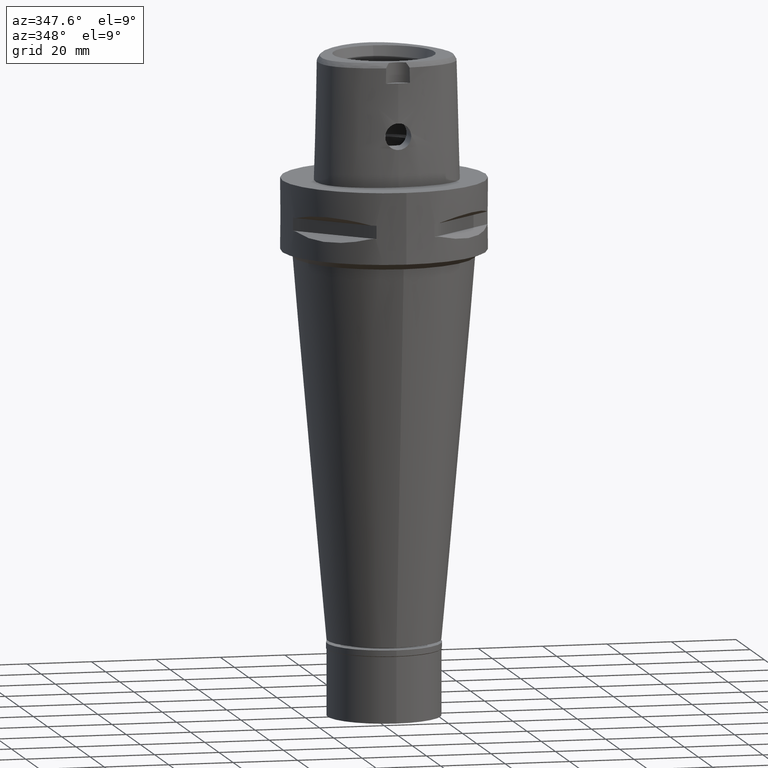
[diagram: clean part render]
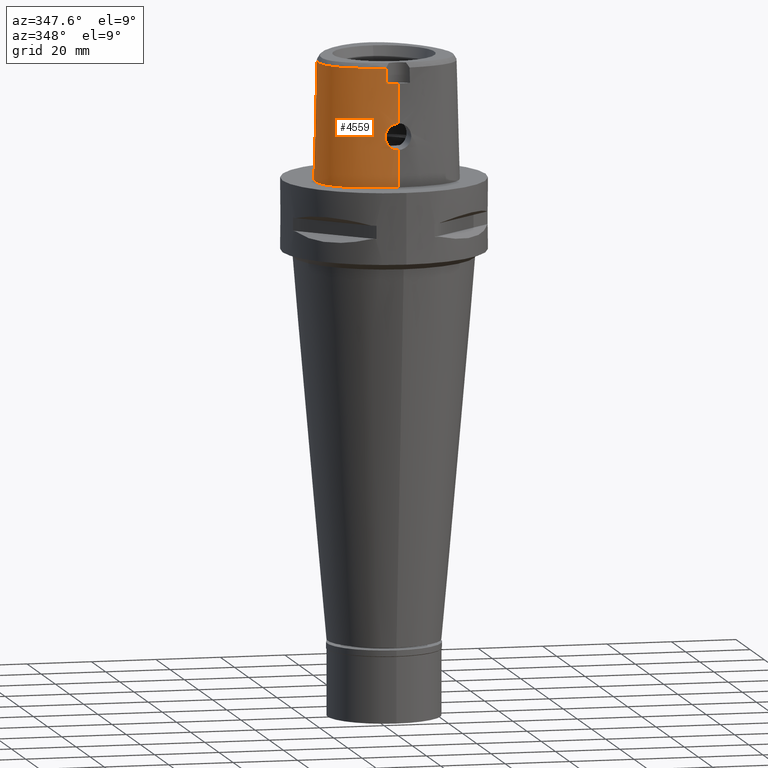
[diagram: same view with one face highlighted and labeled with its STEP entity id]
A machine part, auxiliary view. The second image highlights one B-rep face of the part: STEP entity #4559.
In plain terms, the highlighted face is a freeform B-spline surface patch.
Its self-contained STEP definition (entity closure, byte-faithful):
#1 = CARTESIAN_POINT ( 'NONE',  ( -19.54161185803999956, -11.28235486486999939, 37.25231658535999912 ) ) ;
#29 = CARTESIAN_POINT ( 'NONE',  ( -18.58171406405999804, -14.18198046378999955, -0.7304375801050999595 ) ) ;
#49 = CARTESIAN_POINT ( 'NONE',  ( -10.34823243682000005, 18.70095506127999840, 24.59139853019999933 ) ) ;
#55 = CARTESIAN_POINT ( 'NONE',  ( -1.435479731732086428, -20.16346186668282670, 19.28735383016543636 ) ) ;
#75 = CARTESIAN_POINT ( 'NONE',  ( -3.744959948694050578, -20.12552913461134096, 13.95798024830087947 ) ) ;
#78 = VERTEX_POINT ( 'NONE', #4947 ) ;
#95 = EDGE_LOOP ( 'NONE', ( #1143, #1514, #2871, #1360, #489, #749, #316, #3547 ) ) ;
#106 = CARTESIAN_POINT ( 'NONE',  ( -2.857701613778707905, -20.09902039673189122, 18.36986640665573489 ) ) ;
#127 = CARTESIAN_POINT ( 'NONE',  ( -3.724367697017637813, -20.04896662180712497, 17.09120659051006541 ) ) ;
#151 = CARTESIAN_POINT ( 'NONE',  ( -2.095920934924301093, -20.13817625620761120, 18.96566852664292924 ) ) ;
#186 = CARTESIAN_POINT ( 'NONE',  ( -2.840925263428953684, -20.10000581476812442, 18.38647058799852729 ) ) ;
#249 = CARTESIAN_POINT ( 'NONE',  ( -20.09619618741059099, -10.23243843867994940, 36.52186244848000740 ) ) ;
#272 = B_SPLINE_CURVE_WITH_KNOTS ( 'NONE', 3,
 ( #2077, #1771, #4505, #3262 ),
 .UNSPECIFIED., .F., .F.,
 ( 4, 4 ),
 ( 0.0000000000000000000, 1.000000000000000000 ),
 .UNSPECIFIED. ) ;
#277 = DIRECTION ( 'NONE',  ( 1.535575874124960494E-12, 0.02499051290971940689, -0.9996876883629751687 ) ) ;
#298 = CARTESIAN_POINT ( 'NONE',  ( -10.15538788052847785, 18.47129535094090613, 36.52186244848000740 ) ) ;
#301 = CARTESIAN_POINT ( 'NONE',  ( -2.503210914548999799, 22.99958943620999818, 11.93048047505000042 ) ) ;
#316 = ORIENTED_EDGE ( 'NONE', *, *, #2679, .T. ) ;
#327 = CARTESIAN_POINT ( 'NONE',  ( -10.14358078694999854, 18.45723421411999965, 37.25231658535999912 ) ) ;
#354 = CARTESIAN_POINT ( 'NONE',  ( -20.65879052904000091, -10.48283621510999986, 11.93048047505000042 ) ) ;
#374 = CARTESIAN_POINT ( 'NONE',  ( -21.55524829466141057, -8.996025400901972446, -1.437749666988608760E-06 ) ) ;
#376 = CARTESIAN_POINT ( 'NONE',  ( -20.96392254533999733, -8.820258327664999953, 24.59139853019999933 ) ) ;
#391 = VERTEX_POINT ( 'NONE', #1230 ) ;
#403 = CARTESIAN_POINT ( 'NONE',  ( -10.55288408668000066, 18.94467590843999716, 11.93048047505000042 ) ) ;
#431 = CARTESIAN_POINT ( 'NONE',  ( -14.52531265673999883, -16.95413752390999917, 11.93048047505000042 ) ) ;
#432 = EDGE_CURVE ( 'NONE', #4591, #2996, #664, .T. ) ;
#458 = CARTESIAN_POINT ( 'NONE',  ( -1.543155906917083708, -20.15993380737173979, 19.24449221917412700 ) ) ;
#486 = CARTESIAN_POINT ( 'NONE',  ( -2.218905924398697938, -20.13252692328815385, 18.88811097025638830 ) ) ;
#489 = ORIENTED_EDGE ( 'NONE', *, *, #3095, .F. ) ;
#517 = CARTESIAN_POINT ( 'NONE',  ( -3.258458186252930933, -20.07518877969969395, 17.91982202573088401 ) ) ;
#534 = CARTESIAN_POINT ( 'NONE',  ( -1.886862292100000005, -20.71358859662999663, -0.7304375801050999595 ) ) ;
#542 = CARTESIAN_POINT ( 'NONE',  ( -3.389265356481617975, -20.17902220973950378, 13.28291429010534586 ) ) ;
#550 = CARTESIAN_POINT ( 'NONE',  ( -3.637738201363999835, -19.56971413236999879, 36.52186244848000030 ) ) ;
#566 = CARTESIAN_POINT ( 'NONE',  ( -3.373031804187405669, -20.18121639258755451, 13.25829856262909701 ) ) ;
#591 = CARTESIAN_POINT ( 'NONE',  ( -5.544119042799000852E-12, -20.67499999999999716, 7.264559324463998182E-14 ) ) ;
#595 = CARTESIAN_POINT ( 'NONE',  ( -20.93173255500279595, -10.60431642089638693, -1.437749666988608760E-06 ) ) ;
#598 = CARTESIAN_POINT ( 'NONE',  ( -2.945056662729590435, -20.23335974770773404, 12.71951979027752166 ) ) ;
#602 = CARTESIAN_POINT ( 'NONE',  ( -3.736722311398999796, -19.67781602443999844, 31.80000000000000071 ) ) ;
#637 = CARTESIAN_POINT ( 'NONE',  ( -17.90324032096747331, -13.53935111955411763, 36.52186244848000740 ) ) ;
#640 = CARTESIAN_POINT ( 'NONE',  ( -1.592783463533563149, -20.34459380331111333, 11.77630631410508677 ) ) ;
#664 = B_SPLINE_CURVE_WITH_KNOTS ( 'NONE', 3,
 ( #4256, #3469, #2686, #3923, #3566, #796, #3542, #4362, #851, #2410, #1899, #5024, #374, #595, #1509, #1947, #3491, #1558, #3082, #4636, #3901, #2715, #771 ),
 .UNSPECIFIED., .F., .F.,
 ( 4, 1, 1, 1, 1, 1, 1, 1, 1, 1, 1, 1, 1, 1, 1, 1, 1, 1, 1, 1, 4 ),
 ( 0.0000000000000000000, 0.04166666666724999635, 0.08333333333387001052, 0.1250000000004999889, 0.1666666666672000086, 0.2500000000004000134, 0.3333333333335999904, 0.4166666666670000296, 0.5000000000001999512, 0.5416666666668999985, 0.5833333333333999837, 0.6250000000001000311, 0.6458333333333999837, 0.6666666666667000474, 0.6875000000000000000, 0.7083333333333000637, 0.7500000000000000000, 0.7916666666666000163, 0.8333333333332000326, 0.9166666666664999852, 1.000000000000000000 ),
 .UNSPECIFIED. ) ;
#670 = CARTESIAN_POINT ( 'NONE',  ( -1.638762875757055593, -20.34199391072963436, 11.79616403447456285 ) ) ;
#679 = EDGE_CURVE ( 'NONE', #78, #3269, #2255, .T. ) ;
#693 = CARTESIAN_POINT ( 'NONE',  ( -21.07430010672921128, -0.4408303445193330061, 36.52186244848000740 ) ) ;
#696 = CARTESIAN_POINT ( 'NONE',  ( -1.573175409425758842, -20.34568097891642324, 11.76802073981991192 ) ) ;
#718 = CARTESIAN_POINT ( 'NONE',  ( -21.76083716800999923, -6.805026051211000571, 11.93048047505000042 ) ) ;
#740 = DIRECTION ( 'NONE',  ( -4.234890442307874212E-13, -0.02499051295389925070, -0.9996876883618708298 ) ) ;
#743 = CARTESIAN_POINT ( 'NONE',  ( -13.69241983456000078, 15.03666395352999885, 37.25231658535999912 ) ) ;
#749 = ORIENTED_EDGE ( 'NONE', *, *, #1592, .T. ) ;
#751 = CARTESIAN_POINT ( 'NONE',  ( 0.0000000000000000000, -20.18628283968999781, 19.55000000000000071 ) ) ;
#771 = CARTESIAN_POINT ( 'NONE',  ( -5.544119042799000852E-12, -20.67499999999999716, 7.264559324463998182E-14 ) ) ;
#775 = CARTESIAN_POINT ( 'NONE',  ( -21.31039837718000030, -4.105938496761999623, 37.25231658535999912 ) ) ;
#796 = CARTESIAN_POINT ( 'NONE',  ( -10.74572893383582439, 19.17433596518052497, -1.437749666988608760E-06 ) ) ;
#798 = CARTESIAN_POINT ( 'NONE',  ( -18.35112157829999902, -13.96357039351000040, 11.93048047505000042 ) ) ;
#826 = CARTESIAN_POINT ( 'NONE',  ( -14.42198651810999976, 15.65278600090999994, -0.7304375801050999595 ) ) ;
#851 = CARTESIAN_POINT ( 'NONE',  ( -20.74942744279724494, 4.657187512255438477, -1.437749666988608760E-06 ) ) ;
#883 = CARTESIAN_POINT ( 'NONE',  ( -4.001073718362888165, -20.04211669945555485, 16.14143145178881866 ) ) ;
#910 = CARTESIAN_POINT ( 'NONE',  ( -2.696297221291517054, -20.10826766487147665, 18.52327467490404800 ) ) ;
#943 = CARTESIAN_POINT ( 'NONE',  ( -2.823171496020530746, -20.10104368072839165, 18.40390846381850665 ) ) ;
#957 = CARTESIAN_POINT ( 'NONE',  ( -6.175998610012000789, -19.37631799262999976, 37.25231658535999912 ) ) ;
#966 = CARTESIAN_POINT ( 'NONE',  ( -2.004946554115309532, -20.14219031904388402, 19.01961090508743268 ) ) ;
#979 = CARTESIAN_POINT ( 'NONE',  ( 0.4479792504543000375, -20.05810161159000060, 24.59139853019999933 ) ) ;
#987 = CARTESIAN_POINT ( 'NONE',  ( -4.038047189179770236, -20.04588600821303501, 15.81762949444052246 ) ) ;
#1017 = CARTESIAN_POINT ( 'NONE',  ( -1.560125442582418476, -20.34639974841496723, 11.76254649919985873 ) ) ;
#1042 = CARTESIAN_POINT ( 'NONE',  ( 0.4569144571197000237, 22.85341801426000075, 24.59139853019999933 ) ) ;
#1066 = CARTESIAN_POINT ( 'NONE',  ( 0.6658293008997000495, 22.52368289138000179, 37.25231658535999912 ) ) ;
#1094 = CARTESIAN_POINT ( 'NONE',  ( -2.647522161654190409, -20.26593589461833744, 12.41993733201942263 ) ) ;
#1116 = CARTESIAN_POINT ( 'NONE',  ( 0.7234356449527999944, 23.47140592420999639, -0.7304375801050999595 ) ) ;
#1136 = CARTESIAN_POINT ( 'NONE',  ( -6.344715576255000045, -20.31619964721000215, -0.7304375801050999595 ) ) ;
#1143 = ORIENTED_EDGE ( 'NONE', *, *, #1552, .F. ) ;
#1161 = CARTESIAN_POINT ( 'NONE',  ( -20.46725048832000127, 4.555493665269999326, 11.93048047505000042 ) ) ;
#1189 = CARTESIAN_POINT ( 'NONE',  ( -20.65947762288999812, -8.729764394258999971, 37.25231658535999912 ) ) ;
#1209 = CARTESIAN_POINT ( 'NONE',  ( -16.57726041075999746, -15.19304470913000138, 24.59139853019999933 ) ) ;
#1230 = CARTESIAN_POINT ( 'NONE',  ( -6.936546298697000348E-13, -20.38876923348000147, 11.44999999999999929 ) ) ;
#1266 = CARTESIAN_POINT ( 'NONE',  ( -4.044860985360022809, -20.04749655353610294, 15.72095293212619893 ) ) ;
#1288 = CARTESIAN_POINT ( 'NONE',  ( -3.765619531578895618, -20.12201689240451685, 14.00897413268474523 ) ) ;
#1302 = CARTESIAN_POINT ( 'NONE',  ( -11.02138184258999942, -18.31230465424999920, 24.59139853019999933 ) ) ;
#1314 = CARTESIAN_POINT ( 'NONE',  ( -3.555378551744965421, -20.15552821991417431, 13.55933742269333742 ) ) ;
#1347 = CARTESIAN_POINT ( 'NONE',  ( -3.647723961122987024, -20.14156542810248496, 13.73530131633870610 ) ) ;
#1360 = ORIENTED_EDGE ( 'NONE', *, *, #3944, .T. ) ;
#1365 = CARTESIAN_POINT ( 'NONE',  ( -3.467735300037683377, -20.16817589423725465, 13.40749538294857146 ) ) ;
#1407 = CARTESIAN_POINT ( 'NONE',  ( -1.870070494244999937, -20.39691396694999881, 11.93048047505000042 ) ) ;
#1423 = CARTESIAN_POINT ( 'NONE',  ( -2.904740653634592995, -20.23783060520583277, 12.67768464775381076 ) ) ;
#1443 = CARTESIAN_POINT ( 'NONE',  ( -0.5052764329519503494, -20.38876923348000147, 11.44999999999999929 ) ) ;
#1460 = CARTESIAN_POINT ( 'NONE',  ( -7.300578999877378905, -19.07170748892252021, 36.52186244848000740 ) ) ;
#1463 = CARTESIAN_POINT ( 'NONE',  ( -2.438150623830000363, 22.68791649095999929, 24.59139853019999933 ) ) ;
#1489 = CARTESIAN_POINT ( 'NONE',  ( -4.750826224770999140, 21.65775806871999620, 37.25231658535999912 ) ) ;
#1508 = CARTESIAN_POINT ( 'NONE',  ( -14.22011356156518325, -16.41829364185918649, 36.52186244848000740 ) ) ;
#1509 = CARTESIAN_POINT ( 'NONE',  ( -20.34961801675260418, -11.74885743987403508, -1.437749666988608760E-06 ) ) ;
#1511 = CARTESIAN_POINT ( 'NONE',  ( -16.77374386015999974, -15.44292476915999934, 11.93048047505000042 ) ) ;
#1514 = ORIENTED_EDGE ( 'NONE', *, *, #4443, .F. ) ;
#1517 = CARTESIAN_POINT ( 'NONE',  ( -0.2476349277130089344, -20.18628283969000492, 19.55000000000000782 ) ) ;
#1536 = CARTESIAN_POINT ( 'NONE',  ( -13.93560872908000015, 15.24203796931999833, 24.59139853019999933 ) ) ;
#1541 = CARTESIAN_POINT ( 'NONE',  ( -1.533511455572774462, -20.16025888516049847, 19.24845571506998709 ) ) ;
#1552 = EDGE_CURVE ( 'NONE', #391, #2996, #5023, .T. ) ;
#1558 = CARTESIAN_POINT ( 'NONE',  ( -16.95889174824362300, -15.67838870024704967, -1.437749666988608760E-06 ) ) ;
#1560 = CARTESIAN_POINT ( 'NONE',  ( -19.66427014424999697, -12.83600704526999969, -0.7304375801050999595 ) ) ;
#1590 = CARTESIAN_POINT ( 'NONE',  ( -20.09084478132999863, -11.59945464217999955, 11.93048047505000042 ) ) ;
#1592 = EDGE_CURVE ( 'NONE', #4765, #3646, #2787, .T. ) ;
#1641 = CARTESIAN_POINT ( 'NONE',  ( -2.141741549225103736, -20.13611517949170349, 18.93769700922501897 ) ) ;
#1670 = CARTESIAN_POINT ( 'NONE',  ( -3.755699594870204105, -20.12370835398181512, 13.98431559339847396 ) ) ;
#1686 = CARTESIAN_POINT ( 'NONE',  ( -20.76670354678000052, 4.663413653146999849, -0.7304375801050999595 ) ) ;
#1694 = CARTESIAN_POINT ( 'NONE',  ( -3.740210223300743042, -20.04820644071449465, 17.05351258041511286 ) ) ;
#1695 = B_SPLINE_CURVE_WITH_KNOTS ( 'NONE', 3,
 ( #2552, #4123, #1781, #602 ),
 .UNSPECIFIED., .F., .F.,
 ( 4, 4 ),
 ( 0.0000000000000000000, 1.000000000000000000 ),
 .UNSPECIFIED. ) ;
#1723 = CARTESIAN_POINT ( 'NONE',  ( -2.360303563074455546, -20.12579123674474602, 18.79379445004745719 ) ) ;
#1741 = CARTESIAN_POINT ( 'NONE',  ( 0.4520368087164999826, -20.37458464694999805, 11.93048047505000042 ) ) ;
#1751 = CARTESIAN_POINT ( 'NONE',  ( -1.945188340990088527, -20.14472224014066981, 19.05290483599387841 ) ) ;
#1771 = CARTESIAN_POINT ( 'NONE',  ( -3.671249123513567802, -19.60525173594972514, 34.94790829898666829 ) ) ;
#1776 = CARTESIAN_POINT ( 'NONE',  ( -0.5985508206591999558, 23.20171281894999993, 11.93048047505000042 ) ) ;
#1781 = CARTESIAN_POINT ( 'NONE',  ( -2.503154198992726176, -19.81241979316177648, 31.80000012753027860 ) ) ;
#1799 = CARTESIAN_POINT ( 'NONE',  ( -1.975847471388772369, -20.32064467132638796, 11.96254614166202757 ) ) ;
#1820 = CARTESIAN_POINT ( 'NONE',  ( 0.0000000000000000000, -20.18628283968999781, 19.55000000000000071 ) ) ;
#1826 = CARTESIAN_POINT ( 'NONE',  ( -1.813182315526000312E-11, 22.56201468012000078, 36.52186680743999858 ) ) ;
#1829 = CARTESIAN_POINT ( 'NONE',  ( -1.036028639268795182, -20.37488265450534186, 11.54589121856474421 ) ) ;
#1850 = CARTESIAN_POINT ( 'NONE',  ( -0.5821289287458999429, 22.88453099109999656, 24.59139853019999933 ) ) ;
#1898 = CARTESIAN_POINT ( 'NONE',  ( -4.757642277158857347, 21.67478330407005060, 36.52186244848000740 ) ) ;
#1899 = CARTESIAN_POINT ( 'NONE',  ( -22.24453911460249955, -4.100468749788434231, -1.437749666988608760E-06 ) ) ;
#1903 = CARTESIAN_POINT ( 'NONE',  ( -20.07948507435999730, -10.22500070737000044, 37.25231658535999912 ) ) ;
#1927 = CARTESIAN_POINT ( 'NONE',  ( -18.08416038101000112, 10.44089487089000023, -0.7304375801050999595 ) ) ;
#1947 = CARTESIAN_POINT ( 'NONE',  ( -19.64947368776163472, -12.82525392741661818, -1.437749666988608760E-06 ) ) ;
#1949 = CARTESIAN_POINT ( 'NONE',  ( -17.53318586189000072, 10.12278934698000121, 24.59139853019999933 ) ) ;
#1972 = CARTESIAN_POINT ( 'NONE',  ( -19.86834437139999920, 4.339653689517999346, 37.25231658535999912 ) ) ;
#1984 = VERTEX_POINT ( 'NONE', #4902 ) ;
#1999 = CARTESIAN_POINT ( 'NONE',  ( -14.21104803031999886, -16.40237711546000199, 37.25231658535999912 ) ) ;
#2006 = CARTESIAN_POINT ( 'NONE',  ( -0.8945856573126832467, -20.17742435737030959, 19.45218689967066084 ) ) ;
#2026 = CARTESIAN_POINT ( 'NONE',  ( -1.656557867876204737, -20.15608475847800207, 19.19752105505822470 ) ) ;
#2055 = CARTESIAN_POINT ( 'NONE',  ( -4.050020239240827102, -20.05172727870759175, 15.52772083009781667 ) ) ;
#2077 = CARTESIAN_POINT ( 'NONE',  ( -3.637738201363999835, -19.56971413236999879, 36.52186244848000030 ) ) ;
#2082 = CARTESIAN_POINT ( 'NONE',  ( -3.623131309222435537, -20.05420346129723441, 17.31085075801311746 ) ) ;
#2098 = CARTESIAN_POINT ( 'NONE',  ( 0.6718639848708000128, -20.05378898326999959, 24.59139853019999933 ) ) ;
#2107 = CARTESIAN_POINT ( 'NONE',  ( -3.649552918765418763, -20.05278137445483466, 17.25690594501919506 ) ) ;
#2133 = CARTESIAN_POINT ( 'NONE',  ( -3.294693599458651700, -20.19174263028435234, 13.14094743667249254 ) ) ;
#2164 = CARTESIAN_POINT ( 'NONE',  ( -1.678547993840546537, -20.33965717508419502, 11.81410234512601853 ) ) ;
#2199 = CARTESIAN_POINT ( 'NONE',  ( 0.6657744346518000844, -19.73734270121000023, 37.25231658535999912 ) ) ;
#2234 = CARTESIAN_POINT ( 'NONE',  ( -18.90964971338372891, -12.28759719904925873, 36.52186244848000740 ) ) ;
#2255 = B_SPLINE_CURVE_WITH_KNOTS ( 'NONE', 3,
 ( #3261, #3350, #3207, #3235 ),
 .UNSPECIFIED., .F., .F.,
 ( 4, 4 ),
 ( 0.0000000000000000000, 1.000000000000000000 ),
 .UNSPECIFIED. ) ;
#2256 = CARTESIAN_POINT ( 'NONE',  ( -17.27359245833053336, 9.972912913898635878, 36.52186244848000740 ) ) ;
#2281 = CARTESIAN_POINT ( 'NONE',  ( -10.91263711304999973, -18.01320810248000015, 37.25231658535999912 ) ) ;
#2310 = CARTESIAN_POINT ( 'NONE',  ( -3.637738201363999835, -19.56971413236999879, 36.52186244848000030 ) ) ;
#2315 = CARTESIAN_POINT ( 'NONE',  ( -17.25769860232999875, 9.963736585021999659, 37.25231658535999912 ) ) ;
#2328 = CARTESIAN_POINT ( 'NONE',  ( -1.813182315526000312E-11, 22.56201468012000078, 36.52186680743999858 ) ) ;
#2339 = CARTESIAN_POINT ( 'NONE',  ( -22.07548128864000248, -6.850245535130000007, -0.7304375801050999595 ) ) ;
#2361 = CARTESIAN_POINT ( 'NONE',  ( -7.420053160110999357, 21.05635749107000265, 11.93048047505000042 ) ) ;
#2389 = CARTESIAN_POINT ( 'NONE',  ( -19.81622831968000042, -11.44090475351999991, 24.59139853019999933 ) ) ;
#2397 = CARTESIAN_POINT ( 'NONE',  ( -0.5041357072965171326, -20.18406821911008109, 19.52723308754542586 ) ) ;
#2410 = CARTESIAN_POINT ( 'NONE',  ( -21.97832651345903088, -0.2810937437117549953, -1.437749666988608760E-06 ) ) ;
#2437 = CARTESIAN_POINT ( 'NONE',  ( -3.474608496690548609, -20.06254674854062614, 17.58500429056359593 ) ) ;
#2471 = CARTESIAN_POINT ( 'NONE',  ( -4.049668354669047510, -20.05093596202170048, 15.56089917110888976 ) ) ;
#2492 = CARTESIAN_POINT ( 'NONE',  ( -1.836486898535999890, -19.76356470758999961, 37.25231658535999912 ) ) ;
#2502 = CARTESIAN_POINT ( 'NONE',  ( -4.019667317128778450, -20.04319797611780984, 16.01149687265074917 ) ) ;
#2524 = CARTESIAN_POINT ( 'NONE',  ( -1.769290236095233393, -20.15188564104882474, 19.14550049823999345 ) ) ;
#2544 = CARTESIAN_POINT ( 'NONE',  ( -3.089195988020840389, -20.21685458561790583, 12.88011891962714017 ) ) ;
#2552 = CARTESIAN_POINT ( 'NONE',  ( 2.041042029990999821E-08, -19.88004246002000031, 31.80000004972000127 ) ) ;
#2572 = CARTESIAN_POINT ( 'NONE',  ( -1.812531856175363609, -20.33143503110655104, 11.87770907741172621 ) ) ;
#2593 = CARTESIAN_POINT ( 'NONE',  ( -2.421272737372783812, -20.28648162103850794, 12.24262651723187645 ) ) ;
#2616 = CARTESIAN_POINT ( 'NONE',  ( 0.4823619556323999746, 23.48603817965999951, -0.7304375801050999595 ) ) ;
#2641 = CARTESIAN_POINT ( 'NONE',  ( -16.39211280192206388, -14.95758113318882820, 36.52186244848000740 ) ) ;
#2644 = CARTESIAN_POINT ( 'NONE',  ( -2.870676439667320778, -20.24157259641101092, 12.64311214024309216 ) ) ;
#2665 = CARTESIAN_POINT ( 'NONE',  ( -2.376843896515466348, 22.39422508473949236, 36.52186244848000740 ) ) ;
#2668 = CARTESIAN_POINT ( 'NONE',  ( -7.580410838896000314, 21.33037926075000001, -0.7304375801050999595 ) ) ;
#2679 = EDGE_CURVE ( 'NONE', #3646, #4591, #5049, .T. ) ;
#2686 = CARTESIAN_POINT ( 'NONE',  ( -2.564517734345411082, 23.29328128539626164, -1.437749666988608760E-06 ) ) ;
#2688 = CARTESIAN_POINT ( 'NONE',  ( -19.40779772695999839, -12.64961930227000053, 11.93048047505000042 ) ) ;
#2715 = CARTESIAN_POINT ( 'NONE',  ( -2.113823675201001784, -20.67500003594079061, -1.437749666988608760E-06 ) ) ;
#2718 = CARTESIAN_POINT ( 'NONE',  ( -21.94536983432000099, -4.102220498962999784, 11.93048047505000042 ) ) ;
#2742 = CARTESIAN_POINT ( 'NONE',  ( -20.94844325638000271, -10.61175396898000045, -0.7304375801050999595 ) ) ;
#2764 = CARTESIAN_POINT ( 'NONE',  ( -21.57281239023000197, -9.001246194475998053, -0.7304375801050999595 ) ) ;
#2787 = B_SPLINE_CURVE_WITH_KNOTS ( 'NONE', 3,
 ( #2310, #3440, #1460, #3394, #1508, #2641, #637, #2234, #3001, #249, #3808, #3025, #2977, #693, #4533, #2256, #3828, #298, #3490, #1898, #2665, #4992, #1826 ),
 .UNSPECIFIED., .F., .F.,
 ( 4, 1, 1, 1, 1, 1, 1, 1, 1, 1, 1, 1, 1, 1, 1, 1, 1, 1, 1, 1, 4 ),
 ( 0.0000000000000000000, 0.03580973941722938314, 0.1234633994701893611, 0.1672902294966167880, 0.2111170595230442426, 0.2549438895495767521, 0.2768573045627905627, 0.2987707195760042067, 0.3206841345892179618, 0.3425975496024316613, 0.3864243796289643096, 0.4302512096552865151, 0.4740780396818191633, 0.5617316997346739615, 0.6493853597877392581, 0.7370390198405939453, 0.8246926798934488545, 0.8685195099199813917, 0.9123463399464403212, 0.9561731699728888145, 1.000000000000000000 ),
 .UNSPECIFIED. ) ;
#2799 = CARTESIAN_POINT ( 'NONE',  ( -1.517187227777487379, -20.16080388944384083, 19.25509261511386327 ) ) ;
#2826 = CARTESIAN_POINT ( 'NONE',  ( -3.830582834638338596, -20.11061303524462573, 14.18178188204342405 ) ) ;
#2851 = CARTESIAN_POINT ( 'NONE',  ( -3.538396763548709245, -20.05888067283489207, 17.47415606028659596 ) ) ;
#2870 = CARTESIAN_POINT ( 'NONE',  ( -14.36818034352999973, -16.67825731968999747, 24.59139853019999933 ) ) ;
#2871 = ORIENTED_EDGE ( 'NONE', *, *, #679, .F. ) ;
#2872 = VECTOR ( 'NONE', #740, 1000.000000000000114 ) ;
#2883 = CARTESIAN_POINT ( 'NONE',  ( -2.187988573835274675, -20.13397303482912903, 18.90815865957991804 ) ) ;
#2911 = CARTESIAN_POINT ( 'NONE',  ( -3.699028711252647206, -20.13326891470799396, 13.84698179887988978 ) ) ;
#2929 = CARTESIAN_POINT ( 'NONE',  ( -2.467031803646716703, -20.12045714792750672, 18.71463355124587835 ) ) ;
#2951 = CARTESIAN_POINT ( 'NONE',  ( -2.373090333111000039, 22.37624354570999685, 37.25231658535999912 ) ) ;
#2977 = CARTESIAN_POINT ( 'NONE',  ( -21.32871527669897560, -4.105831244394436474, 36.52186244848000740 ) ) ;
#2996 = VERTEX_POINT ( 'NONE', #591 ) ;
#3001 = CARTESIAN_POINT ( 'NONE',  ( -19.55745547456027111, -11.29150218116743076, 36.52186244848000740 ) ) ;
#3025 = CARTESIAN_POINT ( 'NONE',  ( -21.14970188363336590, -6.717195958887733021, 36.52186244848000740 ) ) ;
#3030 = CARTESIAN_POINT ( 'NONE',  ( -5.105252915175999995, 22.54305024007999947, -0.7304375801050999595 ) ) ;
#3082 = CARTESIAN_POINT ( 'NONE',  ( -14.67337966204096489, -17.21410159383035676, -1.437749666988608760E-06 ) ) ;
#3084 = CARTESIAN_POINT ( 'NONE',  ( -21.99640701348999983, -0.2778990166614000445, -0.7304375801050999595 ) ) ;
#3095 = EDGE_CURVE ( 'NONE', #4765, #1984, #272, .T. ) ;
#3106 = CARTESIAN_POINT ( 'NONE',  ( -20.16779742986000201, 4.447573677393999780, 24.59139853019999933 ) ) ;
#3136 = CARTESIAN_POINT ( 'NONE',  ( -19.15132530967000335, -12.46323155928000048, 24.59139853019999933 ) ) ;
#3151 = B_SPLINE_SURFACE_WITH_KNOTS ( 'NONE', 3, 3, ( 
 ( #1116, #4614, #3831, #1066 ),
 ( #2616, #4511, #1042, #4189 ),
 ( #3811, #1776, #1850, #4972 ),
 ( #3734, #301, #1463, #2951 ),
 ( #3030, #4586, #3443, #1489 ),
 ( #2668, #2361, #3471, #4289 ),
 ( #4258, #403, #49, #327 ),
 ( #826, #3493, #1536, #743 ),
 ( #1927, #4714, #1949, #2315 ),
 ( #1686, #1161, #3106, #1972 ),
 ( #3084, #5050, #4638, #4692 ),
 ( #4662, #2718, #4314, #775 ),
 ( #2339, #718, #3903, #3546 ),
 ( #2764, #3881, #376, #1189 ),
 ( #2742, #354, #3514, #1903 ),
 ( #5026, #1590, #2389, #1 ),
 ( #1560, #2688, #3136, #3853 ),
 ( #29, #798, #3926, #3158 ),
 ( #3568, #1511, #1209, #4339 ),
 ( #3959, #431, #2870, #1999 ),
 ( #3258, #4807, #1302, #2281 ),
 ( #1136, #3770, #4500, #957 ),
 ( #534, #1407, #3283, #2492 ),
 ( #4458, #1741, #979, #4941 ),
 ( #3388, #3696, #2098, #2199 ) ),
 .UNSPECIFIED., .F., .F., .F.,
 ( 4, 1, 1, 1, 1, 1, 1, 1, 1, 1, 1, 1, 1, 1, 1, 1, 1, 1, 1, 1, 1, 1, 4 ),
 ( 4, 4 ),
 ( -0.01173777939042000042, 0.0000000000000000000, 0.04166666666724999635, 0.08333333333387001052, 0.1250000000004999889, 0.1666666666672000086, 0.2500000000004000134, 0.3333333333335999904, 0.4166666666670000296, 0.5000000000001999512, 0.5416666666668999985, 0.5833333333333999837, 0.6250000000001000311, 0.6458333333333999837, 0.6666666666667000474, 0.6875000000000000000, 0.7083333333333000637, 0.7500000000000000000, 0.7916666666666000163, 0.8333333333332000326, 0.9166666666664999852, 1.000000000000000000, 1.008985696609000060 ),
 ( 4.012933776942000132E-09, 0.9999997953403000350 ),
 .UNSPECIFIED. ) ;
#3158 = CARTESIAN_POINT ( 'NONE',  ( -17.88993660678000097, -13.52675025296000122, 37.25231658535999912 ) ) ;
#3207 = CARTESIAN_POINT ( 'NONE',  ( 6.841575544673787854E-09, -20.08420636276188986, 23.63333344114113999 ) ) ;
#3217 = CARTESIAN_POINT ( 'NONE',  ( -3.215526995341419170, -20.20173576183426434, 13.03412874362234142 ) ) ;
#3235 = CARTESIAN_POINT ( 'NONE',  ( 0.0000000000000000000, -20.18628283968999781, 19.55000000000000071 ) ) ;
#3242 = CARTESIAN_POINT ( 'NONE',  ( -3.925430104255240416, -20.04100510367244681, 16.53130951953290761 ) ) ;
#3258 = CARTESIAN_POINT ( 'NONE',  ( -11.23887130166999881, -18.91049775780000175, -0.7304375801050999595 ) ) ;
#3261 = CARTESIAN_POINT ( 'NONE',  ( 2.041042029990999821E-08, -19.88004246002000031, 31.80000004972000127 ) ) ;
#3262 = CARTESIAN_POINT ( 'NONE',  ( -3.736722311398999796, -19.67781602443999844, 31.80000000000000071 ) ) ;
#3267 = CARTESIAN_POINT ( 'NONE',  ( -4.048201904855770472, -20.04950689277237430, 15.62483520886270050 ) ) ;
#3269 = VERTEX_POINT ( 'NONE', #1820 ) ;
#3283 = CARTESIAN_POINT ( 'NONE',  ( -1.853278696390000091, -20.08023933727000099, 24.59139853019999933 ) ) ;
#3296 = CARTESIAN_POINT ( 'NONE',  ( -3.921294970897360344, -20.09312966257111199, 14.47785977240003774 ) ) ;
#3320 = CARTESIAN_POINT ( 'NONE',  ( -2.852725281555362535, -20.09931334524931401, 18.37480908509491684 ) ) ;
#3339 = CARTESIAN_POINT ( 'NONE',  ( -1.555094416682109904, -20.34667554096305153, 11.76044708272214478 ) ) ;
#3350 = CARTESIAN_POINT ( 'NONE',  ( 6.821607014565307510E-09, -19.98212988583391692, 27.71666688228243203 ) ) ;
#3366 = FACE_OUTER_BOUND ( 'NONE', #95, .T. ) ;
#3388 = CARTESIAN_POINT ( 'NONE',  ( 0.6840430853087000607, -20.68668154738000098, -0.7304375801050999595 ) ) ;
#3394 = CARTESIAN_POINT ( 'NONE',  ( -10.91891098965281159, -18.03046406390516765, 36.52186244848000740 ) ) ;
#3397 = CARTESIAN_POINT ( 'NONE',  ( -2.887298006306552534, -20.23974971339209716, 12.65991565105042405 ) ) ;
#3414 = B_SPLINE_CURVE_WITH_KNOTS ( 'NONE', 3,
 ( #751, #1517, #2397, #2006, #3575, #3885, #5054, #55, #4738, #2799, #1541, #458, #2026, #2524, #1751, #966, #151, #1641, #2883, #486, #4486, #1723, #2929, #4037, #910, #4847, #943, #186, #3320, #106, #3710, #517, #2437, #2851, #2082, #2107, #3654, #4767, #127, #3598, #4412, #1694, #3680, #3242, #883, #2502, #987, #1266, #3267, #2471, #2055, #4872, #3629, #4791, #3296, #4390, #2826, #4007, #1288, #1670, #4815, #75, #2911, #1347, #1314, #4444, #1365, #4064, #4089, #542, #4465, #566, #2133, #3217, #2544, #4116, #598, #1423, #3397, #4237, #2644, #1094, #2593, #4949, #1799, #2572, #4893, #2164, #670, #640, #696, #1017, #3339, #1829, #1443, #4216 ),
 .UNSPECIFIED., .F., .F.,
 ( 4, 2, 2, 1, 1, 1, 2, 2, 2, 2, 1, 2, 2, 2, 1, 1, 1, 2, 2, 2, 2, 2, 1, 1, 2, 2, 2, 2, 1, 2, 2, 2, 2, 1, 1, 1, 2, 2, 2, 2, 1, 1, 2, 2, 2, 1, 1, 1, 2, 2, 2, 2, 2, 1, 1, 2, 2, 4 ),
 ( 0.0000000000000000000, 0.06250000000001650069, 0.09375000000002484124, 0.1093750000000288797, 0.1171875000000308920, 0.1210937500000320577, 0.1230468750000327932, 0.1250000000000335287, 0.1562500000000489331, 0.1718750000000568157, 0.1796875000000605627, 0.1835937500000624223, 0.1875000000000643097, 0.2187500000000782430, 0.2343750000000852374, 0.2421875000000890399, 0.2460937500000906220, 0.2480468750000913714, 0.2500000000000921485, 0.3125000000001060818, 0.3437500000001130762, 0.3593750000001169065, 0.3671875000001187939, 0.3710937500001193490, 0.3730468750001191269, 0.3750000000001189604, 0.4375000000001021405, 0.4687500000000937028, 0.4843750000000891509, 0.4921875000000872635, 0.5000000000000853762, 0.5625000000000682787, 0.5937500000000597300, 0.6093750000000551781, 0.6171875000000531797, 0.6210937500000519584, 0.6230468750000516254, 0.6250000000000511813, 0.6562500000000471845, 0.6718750000000451861, 0.6796875000000440759, 0.6835937500000437428, 0.6855468750000435207, 0.6875000000000434097, 0.7187500000000377476, 0.7343750000000347500, 0.7421875000000333067, 0.7460937500000326406, 0.7480468750000324185, 0.7500000000000320854, 0.8125000000000238698, 0.8437500000000197620, 0.8593750000000177636, 0.8671875000000167644, 0.8710937500000162093, 0.8730468750000160982, 0.8750000000000159872, 1.000000000000000000 ),
 .UNSPECIFIED. ) ;
#3440 = CARTESIAN_POINT ( 'NONE',  ( -4.467522189396021304, -19.48130287050756593, 36.52186244848000740 ) ) ;
#3443 = CARTESIAN_POINT ( 'NONE',  ( -4.868968454906000609, 21.95285545916999581, 24.59139853019999933 ) ) ;
#3469 = CARTESIAN_POINT ( 'NONE',  ( -0.8548392448530371945, 23.47500003594240425, -1.437749666988608760E-06 ) ) ;
#3471 = CARTESIAN_POINT ( 'NONE',  ( -7.259695481325000088, 20.78233572138000085, 24.59139853019999933 ) ) ;
#3490 = CARTESIAN_POINT ( 'NONE',  ( -7.108589416785249249, 20.52412325828160533, 36.52186244848000740 ) ) ;
#3491 = CARTESIAN_POINT ( 'NONE',  ( -18.56841067760564101, -14.16937990761454991, -1.437749666988608760E-06 ) ) ;
#3493 = CARTESIAN_POINT ( 'NONE',  ( -14.17879762359999951, 15.44741198510999958, 11.93048047505000042 ) ) ;
#3514 = CARTESIAN_POINT ( 'NONE',  ( -20.36913780169999910, -10.35391846123999926, 24.59139853019999933 ) ) ;
#3542 = CARTESIAN_POINT ( 'NONE',  ( -14.40795641719663500, 15.64093752332035692, -1.437749666988608760E-06 ) ) ;
#3546 = CARTESIAN_POINT ( 'NONE',  ( -21.13154892674999985, -6.714587083374000009, 37.25231658535999912 ) ) ;
#3547 = ORIENTED_EDGE ( 'NONE', *, *, #432, .T. ) ;
#3566 = CARTESIAN_POINT ( 'NONE',  ( -7.571159452560623393, 21.31457034361661229, -1.437749666988608760E-06 ) ) ;
#3568 = CARTESIAN_POINT ( 'NONE',  ( -16.97022730955000114, -15.69280482917999997, -0.7304375801050999595 ) ) ;
#3575 = CARTESIAN_POINT ( 'NONE',  ( -1.025656898079880364, -20.17465608164540924, 19.42036563189136800 ) ) ;
#3598 = CARTESIAN_POINT ( 'NONE',  ( -3.732637044259099923, -20.04856818254153694, 17.07161403143208034 ) ) ;
#3629 = CARTESIAN_POINT ( 'NONE',  ( -4.027507123329243655, -20.06787434564643036, 14.99842726721304764 ) ) ;
#3646 = VERTEX_POINT ( 'NONE', #2328 ) ;
#3654 = CARTESIAN_POINT ( 'NONE',  ( -3.686640039273423319, -20.05085371969648378, 17.17691650729972608 ) ) ;
#3680 = CARTESIAN_POINT ( 'NONE',  ( -3.848435446462607157, -20.04310701875527911, 16.79138261317859104 ) ) ;
#3696 = CARTESIAN_POINT ( 'NONE',  ( 0.6779535350897000212, -20.37023526533000251, 11.93048047505000042 ) ) ;
#3710 = CARTESIAN_POINT ( 'NONE',  ( -3.081106146089191977, -20.08580853919490394, 18.14635433979055534 ) ) ;
#3734 = CARTESIAN_POINT ( 'NONE',  ( -2.568271205268000124, 23.31126238145999707, -0.7304375801050999595 ) ) ;
#3770 = CARTESIAN_POINT ( 'NONE',  ( -6.288476587506999671, -20.00290576234999662, 11.93048047505000042 ) ) ;
#3808 = CARTESIAN_POINT ( 'NONE',  ( -20.67704215115618638, -8.734985316448920400, 36.52186244848000740 ) ) ;
#3811 = CARTESIAN_POINT ( 'NONE',  ( -0.6149727125723999377, 23.51889464678999886, -0.7304375801050999595 ) ) ;
#3828 = CARTESIAN_POINT ( 'NONE',  ( -13.70645028110988761, 15.04851272301005416, 36.52186244848000740 ) ) ;
#3831 = CARTESIAN_POINT ( 'NONE',  ( 0.6850314155840999675, 22.83959056899000117, 24.59139853019999933 ) ) ;
#3853 = CARTESIAN_POINT ( 'NONE',  ( -18.89485289238000121, -12.27684381629000043, 37.25231658535999912 ) ) ;
#3881 = CARTESIAN_POINT ( 'NONE',  ( -21.26836746779000009, -8.910752261069999847, 11.93048047505000042 ) ) ;
#3885 = CARTESIAN_POINT ( 'NONE',  ( -1.222436418487023335, -20.16967318534058151, 19.36171385434369796 ) ) ;
#3901 = CARTESIAN_POINT ( 'NONE',  ( -6.341471025598161226, -20.29812503558362025, -1.437749666988608760E-06 ) ) ;
#3903 = CARTESIAN_POINT ( 'NONE',  ( -21.44619304737999954, -6.759806567292000246, 24.59139853019999933 ) ) ;
#3923 = CARTESIAN_POINT ( 'NONE',  ( -5.098437030699603412, 22.52602542414164688, -1.437749666988608760E-06 ) ) ;
#3926 = CARTESIAN_POINT ( 'NONE',  ( -18.12052909253999999, -13.74516032324000037, 24.59139853019999933 ) ) ;
#3944 = EDGE_CURVE ( 'NONE', #78, #1984, #1695, .T. ) ;
#3959 = CARTESIAN_POINT ( 'NONE',  ( -14.68244496996000059, -17.23001772813000088, -0.7304375801050999595 ) ) ;
#4007 = CARTESIAN_POINT ( 'NONE',  ( -3.788123932986404707, -20.11813248785005115, 14.06654490362369536 ) ) ;
#4037 = CARTESIAN_POINT ( 'NONE',  ( -2.620910454320059202, -20.11234871000608138, 18.58832188861294910 ) ) ;
#4064 = CARTESIAN_POINT ( 'NONE',  ( -3.439520336088130126, -20.17214097397766182, 13.36117420421215662 ) ) ;
#4079 = CARTESIAN_POINT ( 'NONE',  ( 3.796779495581999851E-11, 23.47499999999000053, 6.972200594645999482E-14 ) ) ;
#4089 = CARTESIAN_POINT ( 'NONE',  ( -3.404642689844542769, -20.17693293396709819, 13.30648216239984727 ) ) ;
#4116 = CARTESIAN_POINT ( 'NONE',  ( -3.024136408352561922, -20.22444627912442883, 12.80466769080733158 ) ) ;
#4123 = CARTESIAN_POINT ( 'NONE',  ( -1.251533273949693159, -19.88005341379772162, 31.80000012753027860 ) ) ;
#4189 = CARTESIAN_POINT ( 'NONE',  ( 0.4441907078633000050, 22.53710793156000136, 37.25231658535999912 ) ) ;
#4216 = CARTESIAN_POINT ( 'NONE',  ( -6.936546298697000348E-13, -20.38876923348000147, 11.44999999999999929 ) ) ;
#4237 = CARTESIAN_POINT ( 'NONE',  ( -2.875633270581706924, -20.24102979138325864, 12.64810551045560949 ) ) ;
#4255 = CARTESIAN_POINT ( 'NONE',  ( -6.936546298697000348E-13, -20.38876923348000147, 11.44999999999999929 ) ) ;
#4256 = CARTESIAN_POINT ( 'NONE',  ( 3.796779495581999851E-11, 23.47499999999000053, 6.972200594645999482E-14 ) ) ;
#4258 = CARTESIAN_POINT ( 'NONE',  ( -10.75753573655000039, 19.18839675560999680, -0.7304375801050999595 ) ) ;
#4289 = CARTESIAN_POINT ( 'NONE',  ( -7.099337802538999931, 20.50831395168999904, 37.25231658535999912 ) ) ;
#4314 = CARTESIAN_POINT ( 'NONE',  ( -21.62788410575000242, -4.104079497862000103, 24.59139853019999933 ) ) ;
#4339 = CARTESIAN_POINT ( 'NONE',  ( -16.38077696135999872, -14.94316464910999898, 37.25231658535999912 ) ) ;
#4350 = VECTOR ( 'NONE', #277, 1000.000000000000114 ) ;
#4362 = CARTESIAN_POINT ( 'NONE',  ( -18.06826691654995898, 10.43171876806943210, -1.437749666988608760E-06 ) ) ;
#4390 = CARTESIAN_POINT ( 'NONE',  ( -3.862670319767398386, -20.10459525844602169, 14.28058037402878355 ) ) ;
#4412 = CARTESIAN_POINT ( 'NONE',  ( -3.738100423593297972, -20.04830683710416039, 17.05857473067577956 ) ) ;
#4443 = EDGE_CURVE ( 'NONE', #3269, #391, #3414, .T. ) ;
#4444 = CARTESIAN_POINT ( 'NONE',  ( -3.522029659439640081, -20.16043548747140690, 13.49928467490661710 ) ) ;
#4458 = CARTESIAN_POINT ( 'NONE',  ( 0.4560943669786999832, -20.69106768230999904, -0.7304375801050999595 ) ) ;
#4465 = CARTESIAN_POINT ( 'NONE',  ( -3.378917219881233613, -20.18042296661755941, 13.26717508011585878 ) ) ;
#4486 = CARTESIAN_POINT ( 'NONE',  ( -2.236153415286172397, -20.13171160814249205, 18.87674297724634087 ) ) ;
#4500 = CARTESIAN_POINT ( 'NONE',  ( -6.232237598758999297, -19.68961187749000175, 24.59139853019999933 ) ) ;
#4505 = CARTESIAN_POINT ( 'NONE',  ( -3.704239276368590961, -19.64128040965313460, 33.37395414949332917 ) ) ;
#4511 = CARTESIAN_POINT ( 'NONE',  ( 0.4696382063760000114, 23.16972809696000013, 11.93048047505000042 ) ) ;
#4533 = CARTESIAN_POINT ( 'NONE',  ( -19.88562090098501756, 4.345879983792444889, 36.52186244848000740 ) ) ;
#4559 = ADVANCED_FACE ( 'NONE', ( #3366 ), #3151, .T. ) ;
#4586 = CARTESIAN_POINT ( 'NONE',  ( -4.987110685041000302, 22.24795284963000341, 11.93048047505000042 ) ) ;
#4591 = VERTEX_POINT ( 'NONE', #4079 ) ;
#4614 = CARTESIAN_POINT ( 'NONE',  ( 0.7042335302683999654, 23.15549824660000056, 11.93048047505000042 ) ) ;
#4636 = CARTESIAN_POINT ( 'NONE',  ( -11.23259757962230765, -18.89324222147040189, -1.437749666988608760E-06 ) ) ;
#4638 = CARTESIAN_POINT ( 'NONE',  ( -21.36961511200999908, -0.3886497724022999756, 24.59139853019999933 ) ) ;
#4662 = CARTESIAN_POINT ( 'NONE',  ( -22.26285556288999956, -4.100361500063000264, -0.7304375801050999595 ) ) ;
#4692 = CARTESIAN_POINT ( 'NONE',  ( -21.05621916128000137, -0.4440251502728000399, 37.25231658535999912 ) ) ;
#4714 = CARTESIAN_POINT ( 'NONE',  ( -17.80867312144999914, 10.28184210893000206, 11.93048047505000042 ) ) ;
#4738 = CARTESIAN_POINT ( 'NONE',  ( -1.492692049810980581, -20.16161490772261899, 19.26495844333630458 ) ) ;
#4765 = VERTEX_POINT ( 'NONE', #550 ) ;
#4767 = CARTESIAN_POINT ( 'NONE',  ( -3.704547339787717330, -20.04994126119360587, 17.13715336648521514 ) ) ;
#4791 = CARTESIAN_POINT ( 'NONE',  ( -3.952973241258888937, -20.08624587561761743, 14.60894738506809709 ) ) ;
#4807 = CARTESIAN_POINT ( 'NONE',  ( -11.13012657212999912, -18.61140120602999914, 11.93048047505000042 ) ) ;
#4815 = CARTESIAN_POINT ( 'NONE',  ( -3.749024933915385382, -20.12484193209295569, 13.96788032053498618 ) ) ;
#4847 = CARTESIAN_POINT ( 'NONE',  ( -2.781372202970820329, -20.10345949974347235, 18.44421388672484952 ) ) ;
#4872 = CARTESIAN_POINT ( 'NONE',  ( -4.049829286978767762, -20.05866643351804868, 15.25290641862979513 ) ) ;
#4893 = CARTESIAN_POINT ( 'NONE',  ( -1.758573507203345265, -20.33483936207348819, 11.85124969625364599 ) ) ;
#4902 = CARTESIAN_POINT ( 'NONE',  ( -3.736722311398999796, -19.67781602443999844, 31.80000000000000071 ) ) ;
#4941 = CARTESIAN_POINT ( 'NONE',  ( 0.4439216921921000369, -19.74161857622999960, 37.25231658535999912 ) ) ;
#4947 = CARTESIAN_POINT ( 'NONE',  ( 2.041042029990999821E-08, -19.88004246002000031, 31.80000004972000127 ) ) ;
#4948 = CARTESIAN_POINT ( 'NONE',  ( -1.813182315526000312E-11, 22.56201468012000078, 36.52186680743999858 ) ) ;
#4949 = CARTESIAN_POINT ( 'NONE',  ( -2.086662004819396010, -20.31268127563378911, 12.02638839298497331 ) ) ;
#4972 = CARTESIAN_POINT ( 'NONE',  ( -0.5657070368326000409, 22.56734916326000118, 37.25231658535999912 ) ) ;
#4992 = CARTESIAN_POINT ( 'NONE',  ( -0.7901461696972501558, 22.56201478746904598, 36.52186244848000740 ) ) ;
#5023 = LINE ( 'NONE', #4255, #2872 ) ;
#5024 = CARTESIAN_POINT ( 'NONE',  ( -22.05732877894942945, -6.847636723885096366, -1.437749666988608760E-06 ) ) ;
#5026 = CARTESIAN_POINT ( 'NONE',  ( -20.36546124296999949, -11.75800453082999830, -0.7304375801050999595 ) ) ;
#5049 = LINE ( 'NONE', #4948, #4350 ) ;
#5050 = CARTESIAN_POINT ( 'NONE',  ( -21.68301106274999768, -0.3332743945317999668, 11.93048047505000042 ) ) ;
#5054 = CARTESIAN_POINT ( 'NONE',  ( -1.320866626972709401, -20.16697411650878990, 19.32965971007563510 ) ) ;